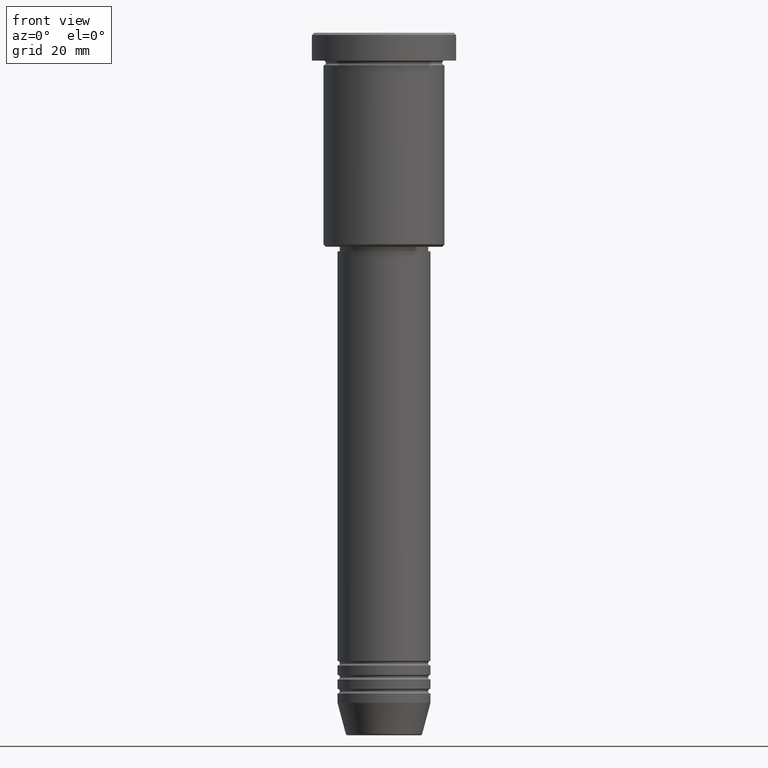
[diagram: clean part render]
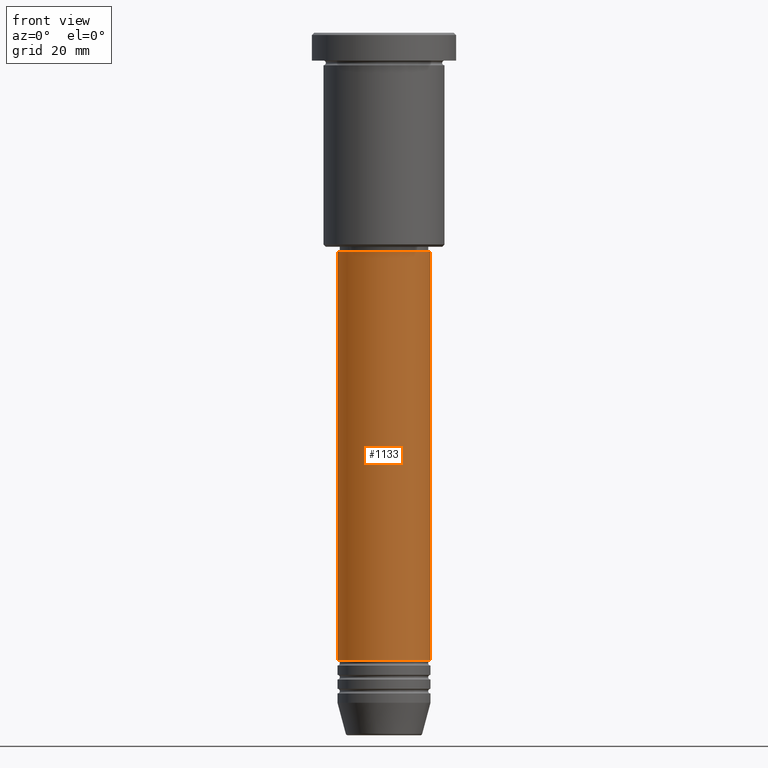
[diagram: same view with one face highlighted and labeled with its STEP entity id]
A machine part, front view. The second image highlights one B-rep face of the part: STEP entity #1133.
In plain terms, the highlighted cylindrical surface (partial cylindrical patch) has radius 10 mm, axis along (-0, -0, 1).
Its self-contained STEP definition (entity closure, byte-faithful):
#12 = ORIENTED_EDGE ( 'NONE', *, *, #1032, .T. ) ;
#108 = AXIS2_PLACEMENT_3D ( 'NONE', #122, #882, #502 ) ;
#122 = CARTESIAN_POINT ( 'NONE',  ( 0.000000000000000000, 0.000000000000000000, -134.9999999999999432 ) ) ;
#137 = CARTESIAN_POINT ( 'NONE',  ( -10.00000000000000000, 1.224646799147353256E-15, -46.99999999999999289 ) ) ;
#140 = ORIENTED_EDGE ( 'NONE', *, *, #961, .F. ) ;
#163 = LINE ( 'NONE', #906, #984 ) ;
#198 = CARTESIAN_POINT ( 'NONE',  ( 0.000000000000000000, 0.000000000000000000, 0.000000000000000000 ) ) ;
#213 = DIRECTION ( 'NONE',  ( 1.000000000000000000, 0.000000000000000000, 0.000000000000000000 ) ) ;
#214 = VERTEX_POINT ( 'NONE', #137 ) ;
#230 = VECTOR ( 'NONE', #1161, 1000.000000000000000 ) ;
#269 = CARTESIAN_POINT ( 'NONE',  ( 10.00000000000000000, 0.000000000000000000, -46.99999999999999289 ) ) ;
#276 = VERTEX_POINT ( 'NONE', #269 ) ;
#280 = DIRECTION ( 'NONE',  ( -0.000000000000000000, -0.000000000000000000, 1.000000000000000000 ) ) ;
#329 = CYLINDRICAL_SURFACE ( 'NONE', #682, 10.00000000000000000 ) ;
#354 = DIRECTION ( 'NONE',  ( -0.000000000000000000, -0.000000000000000000, 1.000000000000000000 ) ) ;
#409 = CARTESIAN_POINT ( 'NONE',  ( 10.00000000000000000, 0.000000000000000000, -134.9999999999999432 ) ) ;
#452 = DIRECTION ( 'NONE',  ( 1.000000000000000000, 0.000000000000000000, 0.000000000000000000 ) ) ;
#502 = DIRECTION ( 'NONE',  ( 1.000000000000000000, 0.000000000000000000, 0.000000000000000000 ) ) ;
#636 = CARTESIAN_POINT ( 'NONE',  ( 10.00000000000000000, 0.000000000000000000, 0.000000000000000000 ) ) ;
#682 = AXIS2_PLACEMENT_3D ( 'NONE', #198, #280, #452 ) ;
#687 = VERTEX_POINT ( 'NONE', #409 ) ;
#701 = ORIENTED_EDGE ( 'NONE', *, *, #884, .T. ) ;
#743 = CIRCLE ( 'NONE', #1047, 10.00000000000000000 ) ;
#789 = CARTESIAN_POINT ( 'NONE',  ( -10.00000000000000000, 1.224646799147353256E-15, -134.9999999999999432 ) ) ;
#794 = ORIENTED_EDGE ( 'NONE', *, *, #1008, .F. ) ;
#882 = DIRECTION ( 'NONE',  ( -0.000000000000000000, -0.000000000000000000, 1.000000000000000000 ) ) ;
#884 = EDGE_CURVE ( 'NONE', #1104, #687, #965, .T. ) ;
#906 = CARTESIAN_POINT ( 'NONE',  ( -10.00000000000000000, 1.224646799147353256E-15, 0.000000000000000000 ) ) ;
#915 = EDGE_LOOP ( 'NONE', ( #794, #701, #12, #140 ) ) ;
#961 = EDGE_CURVE ( 'NONE', #214, #276, #743, .T. ) ;
#965 = CIRCLE ( 'NONE', #108, 10.00000000000000000 ) ;
#984 = VECTOR ( 'NONE', #354, 1000.000000000000000 ) ;
#1008 = EDGE_CURVE ( 'NONE', #1104, #214, #163, .T. ) ;
#1031 = CARTESIAN_POINT ( 'NONE',  ( 0.000000000000000000, 0.000000000000000000, -46.99999999999999289 ) ) ;
#1032 = EDGE_CURVE ( 'NONE', #687, #276, #1056, .T. ) ;
#1047 = AXIS2_PLACEMENT_3D ( 'NONE', #1031, #1050, #213 ) ;
#1050 = DIRECTION ( 'NONE',  ( -0.000000000000000000, -0.000000000000000000, 1.000000000000000000 ) ) ;
#1056 = LINE ( 'NONE', #636, #230 ) ;
#1104 = VERTEX_POINT ( 'NONE', #789 ) ;
#1133 = ADVANCED_FACE ( 'NONE', ( #1139 ), #329, .T. ) ;
#1139 = FACE_OUTER_BOUND ( 'NONE', #915, .T. ) ;
#1161 = DIRECTION ( 'NONE',  ( -0.000000000000000000, -0.000000000000000000, 1.000000000000000000 ) ) ;